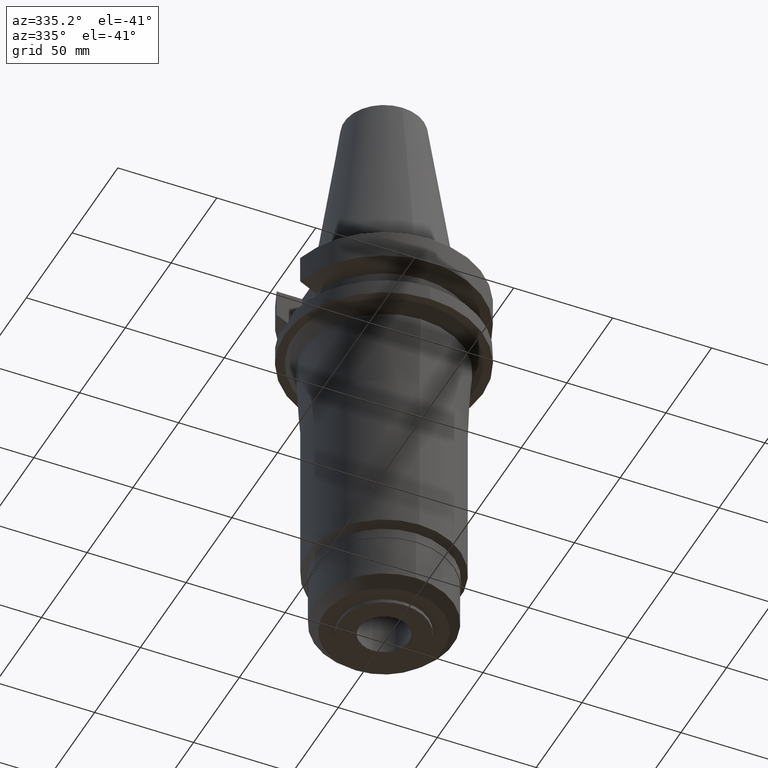
[diagram: clean part render]
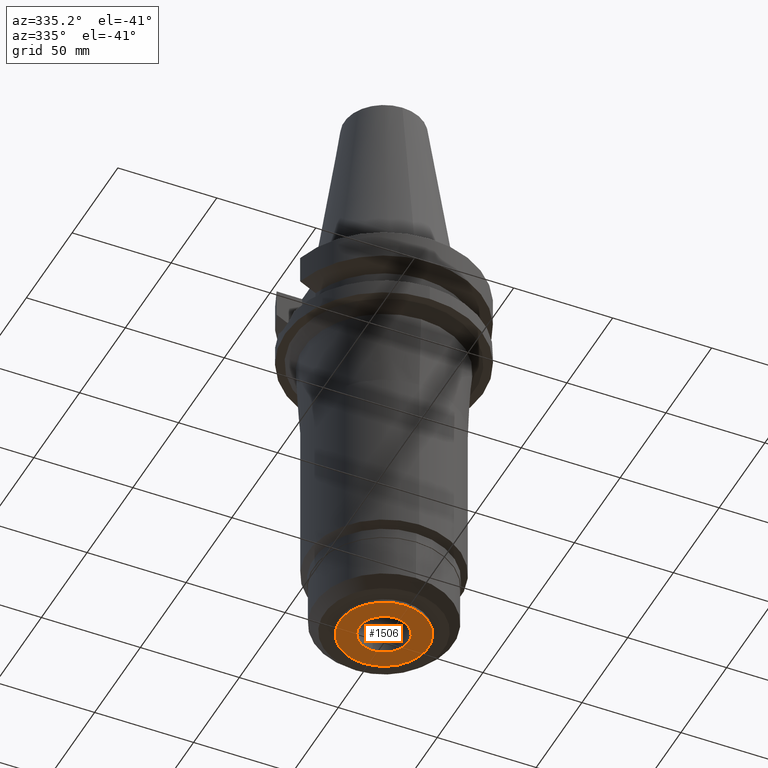
[diagram: same view with one face highlighted and labeled with its STEP entity id]
A machine part, auxiliary view. The second image highlights one B-rep face of the part: STEP entity #1506.
In plain terms, the highlighted planar face has unit normal (0, 0, -1).
Its self-contained STEP definition (entity closure, byte-faithful):
#200=CARTESIAN_POINT('',(0.E0,2.657606018830E-14,-2.024E2));
#201=DIRECTION('',(0.E0,0.E0,1.E0));
#202=DIRECTION('',(0.E0,-1.E0,0.E0));
#203=AXIS2_PLACEMENT_3D('',#200,#201,#202);
#208=CARTESIAN_POINT('',(0.E0,2.657606018830E-14,-2.024E2));
#209=DIRECTION('',(0.E0,0.E0,1.E0));
#210=DIRECTION('',(0.E0,1.E0,0.E0));
#211=AXIS2_PLACEMENT_3D('',#208,#209,#210);
#216=CARTESIAN_POINT('',(0.E0,2.657606018830E-14,-2.024E2));
#217=DIRECTION('',(0.E0,0.E0,-1.E0));
#218=DIRECTION('',(0.E0,-1.E0,0.E0));
#219=AXIS2_PLACEMENT_3D('',#216,#217,#218);
#224=CARTESIAN_POINT('',(0.E0,2.657606018830E-14,-2.024E2));
#225=DIRECTION('',(0.E0,0.E0,-1.E0));
#226=DIRECTION('',(0.E0,1.E0,0.E0));
#227=AXIS2_PLACEMENT_3D('',#224,#225,#226);
#1160=CARTESIAN_POINT('',(0.E0,1.25E1,-2.024E2));
#1161=VERTEX_POINT('',#1160);
#1162=CARTESIAN_POINT('',(0.E0,-1.25E1,-2.024E2));
#1163=VERTEX_POINT('',#1162);
#1164=CARTESIAN_POINT('',(0.E0,-2.24E1,-2.024E2));
#1165=CARTESIAN_POINT('',(0.E0,2.24E1,-2.024E2));
#1166=VERTEX_POINT('',#1164);
#1167=VERTEX_POINT('',#1165);
#1491=CARTESIAN_POINT('',(0.E0,-1.254038322327E-14,-2.024E2));
#1492=DIRECTION('',(0.E0,0.E0,-1.E0));
#1493=DIRECTION('',(0.E0,-1.E0,0.E0));
#1494=AXIS2_PLACEMENT_3D('',#1491,#1492,#1493);
#1495=PLANE('',#1494);
#1497=ORIENTED_EDGE('',*,*,#1496,.T.);
#1499=ORIENTED_EDGE('',*,*,#1498,.T.);
#1500=EDGE_LOOP('',(#1497,#1499));
#1501=FACE_OUTER_BOUND('',#1500,.F.);
#1502=ORIENTED_EDGE('',*,*,#1484,.T.);
#1503=ORIENTED_EDGE('',*,*,#1473,.T.);
#1504=EDGE_LOOP('',(#1502,#1503));
#1505=FACE_BOUND('',#1504,.F.);
#204=CIRCLE('',#203,2.24E1);
#212=CIRCLE('',#211,2.24E1);
#220=CIRCLE('',#219,1.25E1);
#228=CIRCLE('',#227,1.25E1);
#1473=EDGE_CURVE('',#1161,#1163,#228,.T.);
#1484=EDGE_CURVE('',#1163,#1161,#220,.T.);
#1496=EDGE_CURVE('',#1166,#1167,#204,.T.);
#1498=EDGE_CURVE('',#1167,#1166,#212,.T.);
#1506=ADVANCED_FACE('',(#1501,#1505),#1495,.T.);